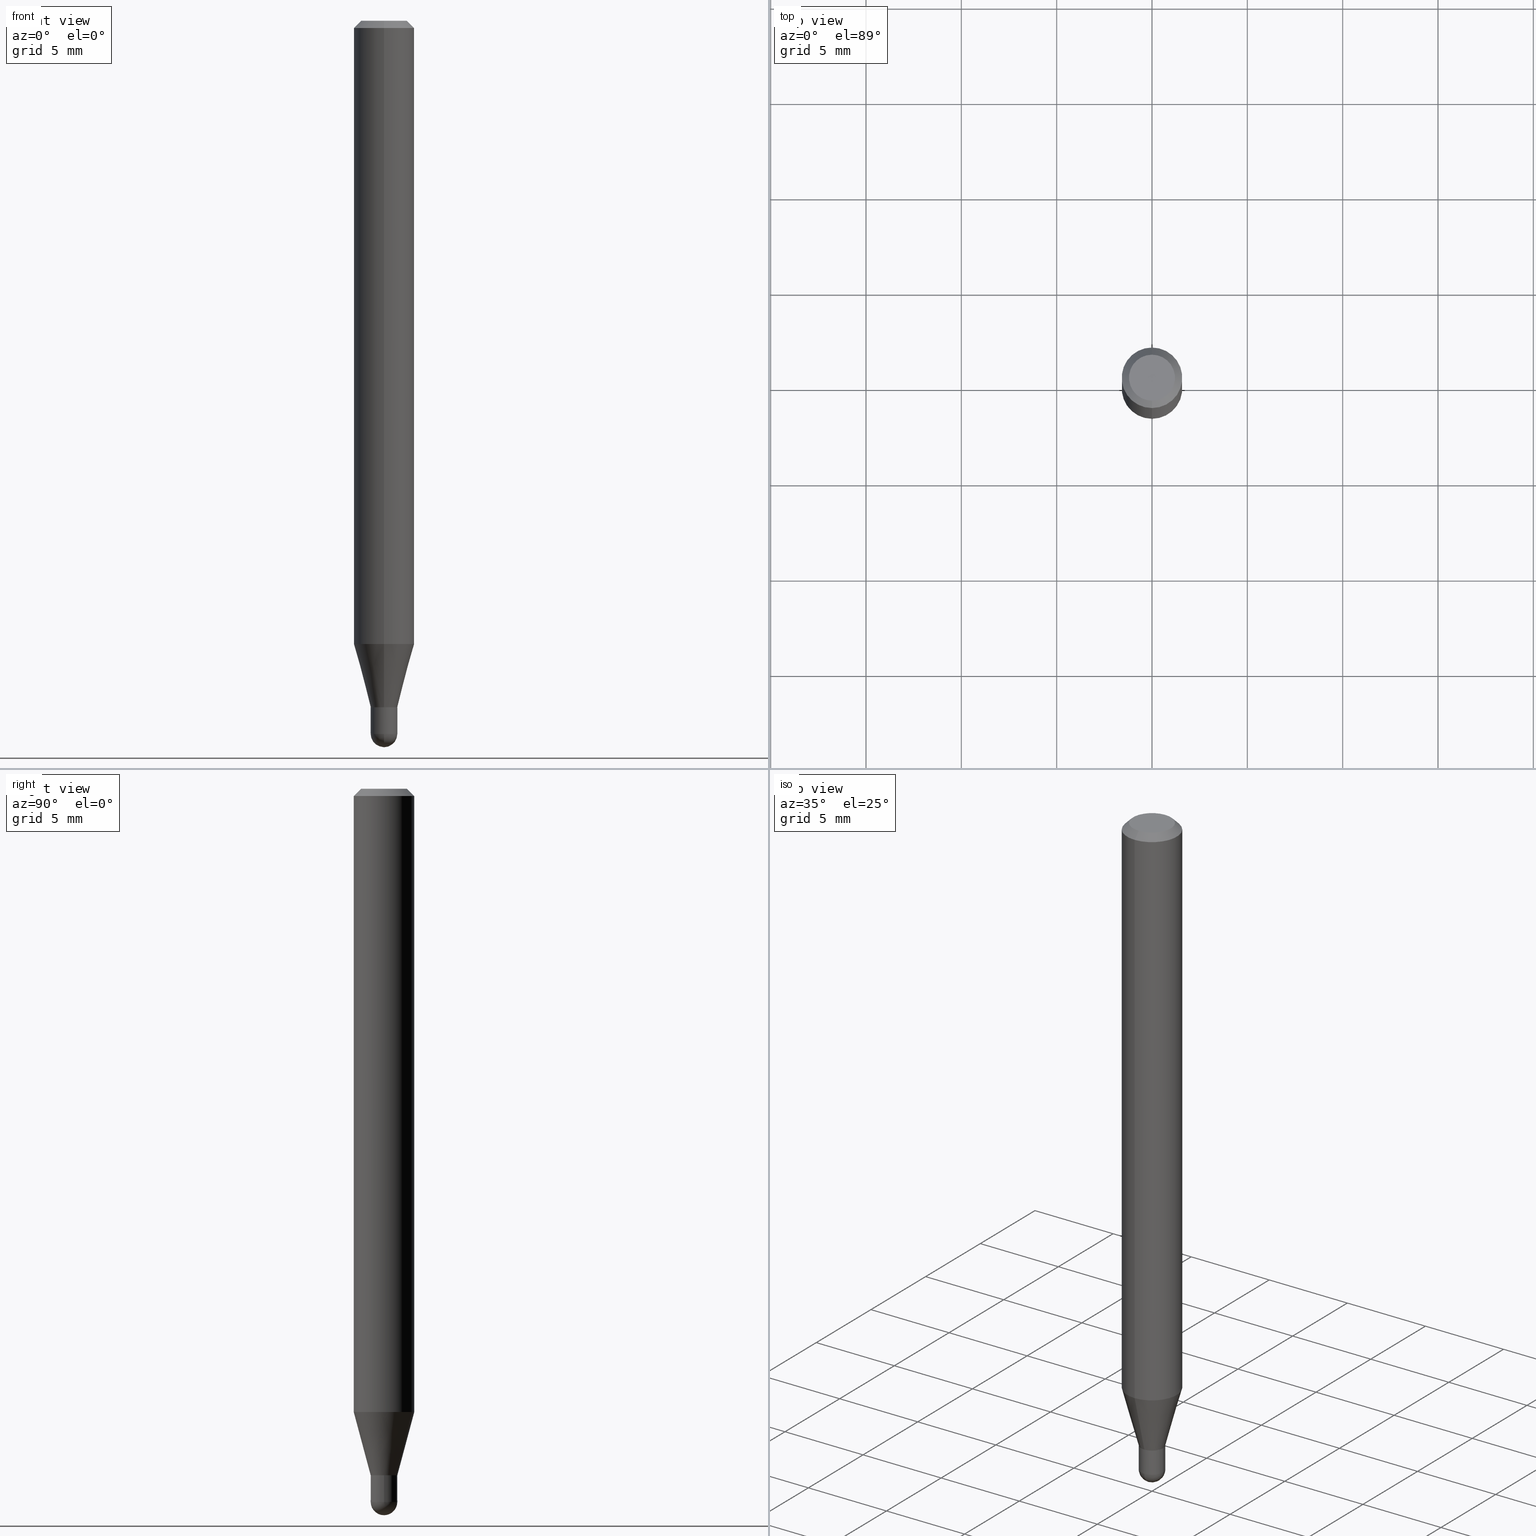
[diagram: canonical four-view strip — front | top / right | iso, engineering-drawing reading convention]
A machine part, canonical four-view strip (front | top / right | iso — engineering-drawing reading convention). The complete STEP part file that produces these views, byte-faithful:
ISO-10303-21;
HEADER;
FILE_DESCRIPTION (( 'STEP AP203' ),
    '1' );
FILE_NAME ('04367.STEP',
    '2024-03-08T18:55:25',
    ( '' ),
    ( '' ),
    'SwSTEP 2.0',
    'SolidWorks 2023',
    '' );
FILE_SCHEMA (( 'CONFIG_CONTROL_DESIGN' ));
ENDSEC;

DATA;
#1 = DIRECTION ( 'NONE',  ( 1.000000000000000000, -7.105427357601001070E-15, 4.926315508542082329E-29 ) ) ;
#2 = CIRCLE ( 'NONE', #37, 0.02750000000000000708 ) ;
#3 = DIRECTION ( 'NONE',  ( -6.982962677686265922E-15, -1.000000000000000000, 0.000000000000000000 ) ) ;
#4 = DIRECTION ( 'NONE',  ( -1.807323732225381810E-15, -0.2588190451025255689, 0.9659258262890669799 ) ) ;
#5 = EDGE_CURVE ( 'NONE', #100, #257, #398, .T. ) ;
#6 = ORIENTED_EDGE ( 'NONE', *, *, #43, .T. ) ;
#7 = FACE_OUTER_BOUND ( 'NONE', #347, .T. ) ;
#8 = VECTOR ( 'NONE', #4, 39.37007874015748854 ) ;
#9 = CLOSED_SHELL ( 'NONE', ( #71, #107, #290, #132, #367, #152, #247, #50, #360, #69, #377, #204 ) ) ;
#10 = PERSON_AND_ORGANIZATION ( #281, #305 ) ;
#11 = UNCERTAINTY_MEASURE_WITH_UNIT (LENGTH_MEASURE( 1.000000000000000082E-05 ), #244, 'distance_accuracy_value', 'NONE');
#12 = ADVANCED_FACE ( 'NONE', ( #80 ), #509, .T. ) ;
#13 = PRODUCT_RELATED_PRODUCT_CATEGORY ( 'detail', '', ( #174 ) ) ;
#14 = PERSON_AND_ORGANIZATION ( #281, #305 ) ;
#15 = APPROVAL_DATE_TIME ( #363, #169 ) ;
#16 = EDGE_LOOP ( 'NONE', ( #456, #288, #265, #249 ) ) ;
#17 = LOCAL_TIME ( 13, 55, 25.00000000000000000, #145 ) ;
#18 = PERSON_AND_ORGANIZATION ( #281, #305 ) ;
#19 = VERTEX_POINT ( 'NONE', #41 ) ;
#20 = EDGE_CURVE ( 'NONE', #223, #19, #202, .T. ) ;
#21 = COORDINATED_UNIVERSAL_TIME_OFFSET ( 5, 0, .BEHIND. ) ;
#22 = VERTEX_POINT ( 'NONE', #148 ) ;
#23 = CARTESIAN_POINT ( 'NONE',  ( 3.598601109812370247E-29, -5.144574050144187163E-15, -1.472500000000000142 ) ) ;
#24 = ORIENTED_EDGE ( 'NONE', *, *, #20, .T. ) ;
#25 = CLOSED_SHELL ( 'NONE', ( #299, #12, #90, #241, #506 ) ) ;
#26 = AXIS2_PLACEMENT_3D ( 'NONE', #49, #365, #323 ) ;
#27 = ORIENTED_EDGE ( 'NONE', *, *, #175, .T. ) ;
#28 = CARTESIAN_POINT ( 'NONE',  ( -4.364351673553916201E-16, -0.06250000000000000000, 2.182180139096782531E-16 ) ) ;
#29 = DIRECTION ( 'NONE',  ( 1.839019923739652775E-15, 0.2588190451025323413, 0.9659258262890650926 ) ) ;
#30 = ORIENTED_EDGE ( 'NONE', *, *, #473, .T. ) ;
#31 = CALENDAR_DATE ( 2024, 8, 3 ) ;
#32 = FACE_OUTER_BOUND ( 'NONE', #432, .T. ) ;
#33 = CARTESIAN_POINT ( 'NONE',  ( 0.02750000000000000708, -5.237222008264718177E-15, -1.472500000000000142 ) ) ;
#34 = CARTESIAN_POINT ( 'NONE',  ( 0.000000000000000000, 0.000000000000000000, 0.000000000000000000 ) ) ;
#35 = PERSON_AND_ORGANIZATION ( #281, #305 ) ;
#36 = DATE_TIME_ROLE ( 'creation_date' ) ;
#37 = AXIS2_PLACEMENT_3D ( 'NONE', #261, #471, #82 ) ;
#38 = FACE_OUTER_BOUND ( 'NONE', #273, .T. ) ;
#39 = CARTESIAN_POINT ( 'NONE',  ( 3.466445219028934149E-29, -4.949184555471504191E-15, -1.417500000000000426 ) ) ;
#40 = DIRECTION ( 'NONE',  ( -2.445463999314943664E-29, 3.491488222554852049E-15, 1.000000000000000000 ) ) ;
#41 = CARTESIAN_POINT ( 'NONE',  ( 1.953992523340629276E-16, 0.02749999999999515679, -1.417000000000000259 ) ) ;
#42 = CARTESIAN_POINT ( 'NONE',  ( -0.02750000000000000014, -4.849791282294318354E-15, -1.417500000000000204 ) ) ;
#43 = EDGE_CURVE ( 'NONE', #65, #98, #310, .T. ) ;
#44 = LINE ( 'NONE', #124, #490 ) ;
#45 = EDGE_LOOP ( 'NONE', ( #196, #214, #125, #6, #352 ) ) ;
#46 = CYLINDRICAL_SURFACE ( 'NONE', #186, 0.02750000000000000708 ) ;
#47 = CONICAL_SURFACE ( 'NONE', #163, 0.02699999999999999969, 0.7853981633974739252 ) ;
#48 = VECTOR ( 'NONE', #462, 39.37007874015748143 ) ;
#49 = CARTESIAN_POINT ( 'NONE',  ( 3.600952817107613706E-29, -5.141206271446532325E-15, -1.472500000000000142 ) ) ;
#50 = ADVANCED_FACE ( 'NONE', ( #38 ), #215, .T. ) ;
#51 = CARTESIAN_POINT ( 'NONE',  ( 0.000000000000000000, 0.000000000000000000, 0.000000000000000000 ) ) ;
#52 = AXIS2_PLACEMENT_3D ( 'NONE', #113, #116, #78 ) ;
#53 = SECURITY_CLASSIFICATION ( '', '', #179 ) ;
#54 = AXIS2_PLACEMENT_3D ( 'NONE', #106, #251, #421 ) ;
#55 = ORIENTED_EDGE ( 'NONE', *, *, #111, .F. ) ;
#56 = ORIENTED_EDGE ( 'NONE', *, *, #20, .F. ) ;
#57 = VECTOR ( 'NONE', #441, 39.37007874015748143 ) ;
#58 = CONICAL_SURFACE ( 'NONE', #403, 0.02750000000000019443, 0.2617993877991579010 ) ;
#59 = ORIENTED_EDGE ( 'NONE', *, *, #339, .F. ) ;
#60 = CARTESIAN_POINT ( 'NONE',  ( -1.885399922974945041E-16, -0.02700000000000494713, -1.417500000000000426 ) ) ;
#61 = ORIENTED_EDGE ( 'NONE', *, *, #498, .F. ) ;
#62 = CARTESIAN_POINT ( 'NONE',  ( 0.02750000000000000014, -5.141206271446532325E-15, -1.417500000000000204 ) ) ;
#63 = EDGE_CURVE ( 'NONE', #22, #19, #386, .T. ) ;
#64 = DIRECTION ( 'NONE',  ( 1.000000000000000000, -6.982962677686265922E-15, 4.883557194083112901E-29 ) ) ;
#65 = VERTEX_POINT ( 'NONE', #33 ) ;
#66 = CIRCLE ( 'NONE', #26, 0.02750000000000000708 ) ;
#67 = PRODUCT_DEFINITION_FORMATION_WITH_SPECIFIED_SOURCE ( 'ANY', '', #174, .NOT_KNOWN. ) ;
#68 = VERTEX_POINT ( 'NONE', #240 ) ;
#69 = ADVANCED_FACE ( 'NONE', ( #92 ), #129, .F. ) ;
#70 = DIRECTION ( 'NONE',  ( -2.445463999314943664E-29, 3.491488222554852049E-15, 1.000000000000000000 ) ) ;
#71 = ADVANCED_FACE ( 'NONE', ( #7 ), #325, .F. ) ;
#72 = ORIENTED_EDGE ( 'NONE', *, *, #85, .T. ) ;
#73 = CARTESIAN_POINT ( 'NONE',  ( 3.668195998972432242E-31, -5.237232333832300359E-17, -0.01500000000000006710 ) ) ;
#74 = FACE_OUTER_BOUND ( 'NONE', #150, .T. ) ;
#75 = DIRECTION ( 'NONE',  ( 5.024295867788190974E-15, 0.7071067811865681119, 0.7071067811865270336 ) ) ;
#76 = EDGE_CURVE ( 'NONE', #448, #161, #314, .T. ) ;
#77 = AXIS2_PLACEMENT_3D ( 'NONE', #308, #210, #481 ) ;
#78 = DIRECTION ( 'NONE',  ( -6.982962677686265922E-15, -1.000000000000000000, 0.000000000000000000 ) ) ;
#79 = CIRCLE ( 'NONE', #324, 0.06250000000000000000 ) ;
#80 = FACE_OUTER_BOUND ( 'NONE', #180, .T. ) ;
#81 = CYLINDRICAL_SURFACE ( 'NONE', #256, 0.02750000000000000708 ) ;
#82 = DIRECTION ( 'NONE',  ( 1.000000000000000000, -6.982962677686277755E-15, 0.000000000000000000 ) ) ;
#83 = DIRECTION ( 'NONE',  ( -2.445463999314943664E-29, 3.491488222554852049E-15, 1.000000000000000000 ) ) ;
#84 = DIRECTION ( 'NONE',  ( -2.445463999314943945E-29, 3.491488222554851654E-15, 1.000000000000000000 ) ) ;
#85 = EDGE_CURVE ( 'NONE', #245, #257, #373, .T. ) ;
#86 = DIRECTION ( 'NONE',  ( -2.445468806185136597E-29, 3.491481338843145583E-15, 1.000000000000000000 ) ) ;
#87 = CC_DESIGN_PERSON_AND_ORGANIZATION_ASSIGNMENT ( #10, #171, ( #440 ) ) ;
#88 = AXIS2_PLACEMENT_3D ( 'NONE', #39, #424, #307 ) ;
#89 = CARTESIAN_POINT ( 'NONE',  ( 3.840629472727447874E-16, 0.04749999999999999362, -2.313455976474456528E-16 ) ) ;
#90 = ADVANCED_FACE ( 'NONE', ( #457 ), #302, .F. ) ;
#91 = DIRECTION ( 'NONE',  ( -6.982962677686265922E-15, -1.000000000000000000, 0.000000000000000000 ) ) ;
#92 = FACE_OUTER_BOUND ( 'NONE', #253, .T. ) ;
#93 = AXIS2_PLACEMENT_3D ( 'NONE', #336, #494, #144 ) ;
#94 = CIRCLE ( 'NONE', #322, 0.02750000000000019443 ) ;
#95 = VECTOR ( 'NONE', #99, 39.37007874015748143 ) ;
#96 = CALENDAR_DATE ( 2024, 8, 3 ) ;
#97 = DIRECTION ( 'NONE',  ( -6.982962677686265922E-15, -1.000000000000000000, 3.491488222554852049E-15 ) ) ;
#98 = VERTEX_POINT ( 'NONE', #62 ) ;
#99 = DIRECTION ( 'NONE',  ( -2.445468806185136877E-29, 3.491481338843145188E-15, 1.000000000000000000 ) ) ;
#100 = VERTEX_POINT ( 'NONE', #380 ) ;
#101 = ORIENTED_EDGE ( 'NONE', *, *, #402, .T. ) ;
#102 = CIRCLE ( 'NONE', #333, 0.06250000000000000000 ) ;
#103 = APPROVAL_ROLE ( '' ) ;
#104 = CIRCLE ( 'NONE', #243, 0.04749999999999999362 ) ;
#105 = ORIENTED_EDGE ( 'NONE', *, *, #168, .T. ) ;
#106 = CARTESIAN_POINT ( 'NONE',  ( 1.920314736364070050E-16, 0.02749999999999505271, -1.417500000000000204 ) ) ;
#107 = ADVANCED_FACE ( 'NONE', ( #185 ), #478, .T. ) ;
#108 = CC_DESIGN_DATE_AND_TIME_ASSIGNMENT ( #366, #291, ( #53 ) ) ;
#109 = ORIENTED_EDGE ( 'NONE', *, *, #5, .F. ) ;
#110 = CYLINDRICAL_SURFACE ( 'NONE', #153, 0.06250000000000000000 ) ;
#111 = EDGE_CURVE ( 'NONE', #430, #486, #298, .T. ) ;
#112 = DIRECTION ( 'NONE',  ( -2.445468806185136877E-29, 3.491481338843145188E-15, 1.000000000000000000 ) ) ;
#113 = CARTESIAN_POINT ( 'NONE',  ( 3.466445219028933028E-29, -4.949184555471503402E-15, -1.417500000000000204 ) ) ;
#114 = ORIENTED_EDGE ( 'NONE', *, *, #319, .T. ) ;
#115 = DIRECTION ( 'NONE',  ( -2.445463999314943664E-29, 3.491488222554852049E-15, 1.000000000000000000 ) ) ;
#116 = DIRECTION ( 'NONE',  ( -2.445463999314943664E-29, 3.491488222554852049E-15, 1.000000000000000000 ) ) ;
#117 = ORIENTED_EDGE ( 'NONE', *, *, #415, .F. ) ;
#118 = DIRECTION ( 'NONE',  ( -2.445468806185136597E-29, 3.491481338843145583E-15, 1.000000000000000000 ) ) ;
#119 = ORIENTED_EDGE ( 'NONE', *, *, #220, .F. ) ;
#120 = ORIENTED_EDGE ( 'NONE', *, *, #458, .T. ) ;
#121 = APPLICATION_CONTEXT ( 'configuration controlled 3d designs of mechanical parts and assemblies' ) ;
#122 = AXIS2_PLACEMENT_3D ( 'NONE', #351, #508, #397 ) ;
#123 = CC_DESIGN_APPROVAL ( #228, ( #53 ) ) ;
#124 = CARTESIAN_POINT ( 'NONE',  ( 4.440892098500625669E-16, 0.06250000000000000000, -2.182180139096782531E-16 ) ) ;
#125 = ORIENTED_EDGE ( 'NONE', *, *, #339, .T. ) ;
#126 = DIRECTION ( 'NONE',  ( -6.982962677686265133E-15, -1.000000000000000000, 0.000000000000000000 ) ) ;
#127 = DESIGN_CONTEXT ( 'detailed design', #121, 'design' ) ;
#128 = CIRCLE ( 'NONE', #343, 0.06250000000000000000 ) ;
#129 = PLANE ( 'NONE',  #485 ) ;
#130 = AXIS2_PLACEMENT_3D ( 'NONE', #162, #86, #438 ) ;
#131 = CARTESIAN_POINT ( 'NONE',  ( -4.364351673553603122E-16, -0.06250000000000451028, -1.286878221735094252 ) ) ;
#132 = ADVANCED_FACE ( 'NONE', ( #463 ), #110, .T. ) ;
#133 = CARTESIAN_POINT ( 'NONE',  ( 0.000000000000000000, 0.000000000000000000, 0.000000000000000000 ) ) ;
#134 = CIRCLE ( 'NONE', #451, 0.02749999999999996197 ) ;
#135 = EDGE_CURVE ( 'NONE', #257, #19, #328, .T. ) ;
#136 = ORIENTED_EDGE ( 'NONE', *, *, #404, .F. ) ;
#137 =( NAMED_UNIT ( * ) PLANE_ANGLE_UNIT ( ) SI_UNIT ( $, .RADIAN. ) );
#138 = VERTEX_POINT ( 'NONE', #238 ) ;
#139 = VERTEX_POINT ( 'NONE', #42 ) ;
#140 = CIRCLE ( 'NONE', #484, 0.02749999999999996197 ) ;
#141 = VECTOR ( 'NONE', #75, 39.37007874015748143 ) ;
#142 = CARTESIAN_POINT ( 'NONE',  ( -1.885399922974945041E-16, -0.02700000000000494713, -1.417500000000000426 ) ) ;
#143 = ORIENTED_EDGE ( 'NONE', *, *, #498, .T. ) ;
#144 = DIRECTION ( 'NONE',  ( -6.982962677686265133E-15, -1.000000000000000000, 0.000000000000000000 ) ) ;
#145 = COORDINATED_UNIVERSAL_TIME_OFFSET ( 5, 0, .BEHIND. ) ;
#146 = PERSON_AND_ORGANIZATION_ROLE ( 'classification_officer' ) ;
#147 = DIRECTION ( 'NONE',  ( -2.445463999314943664E-29, 3.491488222554852049E-15, 1.000000000000000000 ) ) ;
#148 = CARTESIAN_POINT ( 'NONE',  ( 3.197442310920788942E-16, 0.02749999999999524700, -1.417500000000000204 ) ) ;
#149 = CARTESIAN_POINT ( 'NONE',  ( 1.953992523340288833E-16, 0.02750000000000019443, -9.601592612025911519E-17 ) ) ;
#150 = EDGE_LOOP ( 'NONE', ( #56, #211, #72, #296 ) ) ;
#151 = AXIS2_PLACEMENT_3D ( 'NONE', #394, #389, #480 ) ;
#152 = ADVANCED_FACE ( 'NONE', ( #200 ), #58, .T. ) ;
#153 = AXIS2_PLACEMENT_3D ( 'NONE', #254, #227, #422 ) ;
#154 = CARTESIAN_POINT ( 'NONE',  ( 3.668195998972432242E-31, -5.237232333832300359E-17, -0.01500000000000006710 ) ) ;
#155 = CARTESIAN_POINT ( 'NONE',  ( 1.601776647130526163E-45, -2.286921541346059777E-31, -6.549990707609015679E-17 ) ) ;
#156 = CARTESIAN_POINT ( 'NONE',  ( 4.364351673553919652E-16, 0.06249999999999995143, -0.01500000000000028394 ) ) ;
#157 = DIRECTION ( 'NONE',  ( 1.000000000000000000, -6.982962677686279332E-15, 0.000000000000000000 ) ) ;
#158 = DIRECTION ( 'NONE',  ( 6.982962677686265922E-15, 1.000000000000000000, -3.483106191921935554E-15 ) ) ;
#159 = DIMENSIONAL_EXPONENTS ( 1.000000000000000000, 0.000000000000000000, 0.000000000000000000, 0.000000000000000000, 0.000000000000000000, 0.000000000000000000, 0.000000000000000000 ) ;
#160 = CARTESIAN_POINT ( 'NONE',  ( 3.147014362755607605E-29, -4.493120155050413636E-15, -1.286878221735094474 ) ) ;
#161 = VERTEX_POINT ( 'NONE', #317 ) ;
#162 = CARTESIAN_POINT ( 'NONE',  ( 3.600952817107613706E-29, -5.141206271446532325E-15, -1.472500000000000142 ) ) ;
#163 = AXIS2_PLACEMENT_3D ( 'NONE', #232, #392, #126 ) ;
#164 = CONICAL_SURFACE ( 'NONE', #270, 0.06250000000000000000, 0.7853981633974483900 ) ;
#165 = CC_DESIGN_PERSON_AND_ORGANIZATION_ASSIGNMENT ( #18, #454, ( #67 ) ) ;
#166 = DIRECTION ( 'NONE',  ( -2.445463999314943664E-29, 3.491488222554852049E-15, 1.000000000000000000 ) ) ;
#167 = ORIENTED_EDGE ( 'NONE', *, *, #345, .T. ) ;
#168 = EDGE_CURVE ( 'NONE', #65, #448, #344, .T. ) ;
#169 = APPROVAL ( #246, 'UNSPECIFIED' ) ;
#170 = CIRCLE ( 'NONE', #52, 0.02750000000000019443 ) ;
#171 = PERSON_AND_ORGANIZATION_ROLE ( 'creator' ) ;
#172 = CARTESIAN_POINT ( 'NONE',  ( 1.953992523340633713E-16, 0.02749999999999484107, -1.472500000000000142 ) ) ;
#173 = COORDINATED_UNIVERSAL_TIME_OFFSET ( 5, 0, .BEHIND. ) ;
#174 = PRODUCT ( '04367', '04367', '', ( #364 ) ) ;
#175 = EDGE_CURVE ( 'NONE', #486, #285, #79, .T. ) ;
#176 = DATE_AND_TIME ( #96, #213 ) ;
#177 = AXIS2_PLACEMENT_3D ( 'NONE', #133, #326, #417 ) ;
#178 = ORIENTED_EDGE ( 'NONE', *, *, #410, .F. ) ;
#179 = SECURITY_CLASSIFICATION_LEVEL ( 'unclassified' ) ;
#180 = EDGE_LOOP ( 'NONE', ( #237, #349, #488, #59 ) ) ;
#181 = CALENDAR_DATE ( 2024, 8, 3 ) ;
#182 = ORIENTED_EDGE ( 'NONE', *, *, #345, .F. ) ;
#183 = DIRECTION ( 'NONE',  ( -6.982962677686265922E-15, -1.000000000000000000, 0.000000000000000000 ) ) ;
#184 = ORIENTED_EDGE ( 'NONE', *, *, #135, .T. ) ;
#185 = FACE_OUTER_BOUND ( 'NONE', #330, .T. ) ;
#186 = AXIS2_PLACEMENT_3D ( 'NONE', #399, #511, #355 ) ;
#187 = CARTESIAN_POINT ( 'NONE',  ( -0.02750000000000000708, 1.953992523340276014E-16, -1.352707149820099356E-30 ) ) ;
#188 = ORIENTED_EDGE ( 'NONE', *, *, #63, .T. ) ;
#189 = CARTESIAN_POINT ( 'NONE',  ( 3.465222487029276167E-29, -4.947438811360226549E-15, -1.417000000000000259 ) ) ;
#190 = CARTESIAN_POINT ( 'NONE',  ( 3.466445219028933028E-29, -4.949184555471503402E-15, -1.417500000000000204 ) ) ;
#191 = DIRECTION ( 'NONE',  ( -2.445463999314943664E-29, 3.491488222554852049E-15, 1.000000000000000000 ) ) ;
#192 = CONICAL_SURFACE ( 'NONE', #483, 0.02750000000000019443, 0.2617993877991579010 ) ;
#193 = LOCAL_TIME ( 13, 55, 25.00000000000000000, #300 ) ;
#194 = AXIS2_PLACEMENT_3D ( 'NONE', #189, #83, #396 ) ;
#195 = CARTESIAN_POINT ( 'NONE',  ( 3.465222487029276167E-29, -4.947438811360226549E-15, -1.417000000000000259 ) ) ;
#196 = ORIENTED_EDGE ( 'NONE', *, *, #226, .F. ) ;
#197 = CARTESIAN_POINT ( 'NONE',  ( 1.953992523340635685E-16, 0.02749999999999524700, -1.417500000000000204 ) ) ;
#198 = DIRECTION ( 'NONE',  ( -2.445463999314943664E-29, 3.491488222554852049E-15, 1.000000000000000000 ) ) ;
#199 = DIRECTION ( 'NONE',  ( -6.982962677686265922E-15, -1.000000000000000000, 0.000000000000000000 ) ) ;
#200 = FACE_OUTER_BOUND ( 'NONE', #412, .T. ) ;
#201 = DIRECTION ( 'NONE',  ( -6.982962677686265922E-15, -1.000000000000000000, 4.370956789862821150E-15 ) ) ;
#202 = LINE ( 'NONE', #356, #141 ) ;
#203 = LINE ( 'NONE', #278, #57 ) ;
#204 = ADVANCED_FACE ( 'NONE', ( #231 ), #391, .F. ) ;
#205 = PERSON_AND_ORGANIZATION_ROLE ( 'design_owner' ) ;
#206 = LOCAL_TIME ( 13, 55, 25.00000000000000000, #21 ) ;
#207 = LOCAL_TIME ( 13, 55, 25.00000000000000000, #255 ) ;
#208 = VECTOR ( 'NONE', #332, 39.37007874015748143 ) ;
#209 = CC_DESIGN_PERSON_AND_ORGANIZATION_ASSIGNMENT ( #216, #495, ( #67 ) ) ;
#210 = DIRECTION ( 'NONE',  ( -2.445463999314943664E-29, 3.491488222554852049E-15, 1.000000000000000000 ) ) ;
#211 = ORIENTED_EDGE ( 'NONE', *, *, #252, .T. ) ;
#212 = DIRECTION ( 'NONE',  ( -6.982962677686265922E-15, -1.000000000000000000, 3.491488222554852049E-15 ) ) ;
#213 = LOCAL_TIME ( 13, 55, 25.00000000000000000, #173 ) ;
#214 = ORIENTED_EDGE ( 'NONE', *, *, #411, .T. ) ;
#215 = CONICAL_SURFACE ( 'NONE', #371, 0.06250000000000000000, 0.7853981633974483900 ) ;
#216 = PERSON_AND_ORGANIZATION ( #281, #305 ) ;
#217 = PRODUCT_DEFINITION_SHAPE ( 'NONE', 'NONE',  #440 ) ;
#218 = ORIENTED_EDGE ( 'NONE', *, *, #135, .F. ) ;
#219 = APPROVAL_STATUS ( 'not_yet_approved' ) ;
#220 = EDGE_CURVE ( 'NONE', #368, #425, #104, .T. ) ;
#221 = ORIENTED_EDGE ( 'NONE', *, *, #473, .F. ) ;
#222 = VECTOR ( 'NONE', #474, 39.37007874015748143 ) ;
#223 = VERTEX_POINT ( 'NONE', #327 ) ;
#224 = CC_DESIGN_APPROVAL ( #321, ( #67 ) ) ;
#225 = DIRECTION ( 'NONE',  ( 2.445463999314943664E-29, -3.491488222554852049E-15, -1.000000000000000000 ) ) ;
#226 = EDGE_CURVE ( 'NONE', #161, #139, #449, .T. ) ;
#227 = DIRECTION ( 'NONE',  ( -2.445463999314943664E-29, 3.491488222554852049E-15, 1.000000000000000000 ) ) ;
#228 = APPROVAL ( #219, 'UNSPECIFIED' ) ;
#229 = PLANE ( 'NONE',  #151 ) ;
#230 = ORIENTED_EDGE ( 'NONE', *, *, #283, .T. ) ;
#231 = FACE_OUTER_BOUND ( 'NONE', #318, .T. ) ;
#232 = CARTESIAN_POINT ( 'NONE',  ( 3.466445219028934149E-29, -4.949184555471504191E-15, -1.417500000000000426 ) ) ;
#233 = CARTESIAN_POINT ( 'NONE',  ( 3.668195998972432242E-31, -5.237232333832300359E-17, -0.01500000000000006710 ) ) ;
#234 = AXIS2_PLACEMENT_3D ( 'NONE', #23, #64, #183 ) ;
#235 = DIRECTION ( 'NONE',  ( -6.982962677686265922E-15, -1.000000000000000000, 4.370956789862821150E-15 ) ) ;
#236 = CARTESIAN_POINT ( 'NONE',  ( -1.920314736363389904E-16, -0.02750000000000514186, -1.417500000000000204 ) ) ;
#237 = ORIENTED_EDGE ( 'NONE', *, *, #470, .F. ) ;
#238 = CARTESIAN_POINT ( 'NONE',  ( 4.440892098500938748E-16, 0.06249999999999548972, -1.286878221735094918 ) ) ;
#239 = CARTESIAN_POINT ( 'NONE',  ( 3.598601109812370247E-29, -5.144574050144187163E-15, -1.472500000000000142 ) ) ;
#240 = CARTESIAN_POINT ( 'NONE',  ( -1.920314736363362294E-16, -0.02750000000000512798, -1.472500000000000142 ) ) ;
#241 = ADVANCED_FACE ( 'NONE', ( #455 ), #378, .T. ) ;
#242 = AXIS2_PLACEMENT_3D ( 'NONE', #195, #198, #346 ) ;
#243 = AXIS2_PLACEMENT_3D ( 'NONE', #155, #469, #284 ) ;
#244 =( CONVERSION_BASED_UNIT ( 'INCH', #287 ) LENGTH_UNIT ( ) NAMED_UNIT ( #159 ) );
#245 = VERTEX_POINT ( 'NONE', #142 ) ;
#246 = APPROVAL_STATUS ( 'not_yet_approved' ) ;
#247 = ADVANCED_FACE ( 'NONE', ( #459 ), #383, .T. ) ;
#248 = ORIENTED_EDGE ( 'NONE', *, *, #439, .F. ) ;
#249 = ORIENTED_EDGE ( 'NONE', *, *, #76, .F. ) ;
#250 = ORIENTED_EDGE ( 'NONE', *, *, #226, .T. ) ;
#251 = DIRECTION ( 'NONE',  ( 2.438088387897960049E-29, -3.491481338843145188E-15, -1.000000000000000000 ) ) ;
#252 = EDGE_CURVE ( 'NONE', #223, #245, #277, .T. ) ;
#253 = EDGE_LOOP ( 'NONE', ( #178, #502 ) ) ;
#254 = CARTESIAN_POINT ( 'NONE',  ( 0.000000000000000000, 0.000000000000000000, 0.000000000000000000 ) ) ;
#255 = COORDINATED_UNIVERSAL_TIME_OFFSET ( 5, 0, .BEHIND. ) ;
#256 = AXIS2_PLACEMENT_3D ( 'NONE', #500, #118, #464 ) ;
#257 = VERTEX_POINT ( 'NONE', #358 ) ;
#258 = APPROVAL_PERSON_ORGANIZATION ( #452, #321, #499 ) ;
#259 = CC_DESIGN_DATE_AND_TIME_ASSIGNMENT ( #176, #36, ( #440 ) ) ;
#260 = DIRECTION ( 'NONE',  ( -2.445463999314943664E-29, 3.491488222554852049E-15, 1.000000000000000000 ) ) ;
#261 = CARTESIAN_POINT ( 'NONE',  ( 3.600952817107613706E-29, -5.141206271446532325E-15, -1.472500000000000142 ) ) ;
#262 = VERTEX_POINT ( 'NONE', #342 ) ;
#263 = DIRECTION ( 'NONE',  ( -6.982962677686265922E-15, -1.000000000000000000, 3.483106191921935554E-15 ) ) ;
#264 = FACE_OUTER_BOUND ( 'NONE', #445, .T. ) ;
#265 = ORIENTED_EDGE ( 'NONE', *, *, #411, .F. ) ;
#266 =( LENGTH_UNIT ( ) NAMED_UNIT ( * ) SI_UNIT ( $, .METRE. ) );
#267 = DIRECTION ( 'NONE',  ( 7.105427357601001070E-15, 1.000000000000000000, 0.000000000000000000 ) ) ;
#268 = ORIENTED_EDGE ( 'NONE', *, *, #410, .T. ) ;
#269 = ORIENTED_EDGE ( 'NONE', *, *, #220, .T. ) ;
#270 = AXIS2_PLACEMENT_3D ( 'NONE', #431, #468, #272 ) ;
#271 = DIRECTION ( 'NONE',  ( -6.982962677686266711E-15, -1.000000000000000000, 3.491488222554852443E-15 ) ) ;
#272 = DIRECTION ( 'NONE',  ( 6.982962677686265922E-15, 1.000000000000000000, -3.483106191921935554E-15 ) ) ;
#273 = EDGE_LOOP ( 'NONE', ( #117, #61, #120, #393 ) ) ;
#274 = FACE_OUTER_BOUND ( 'NONE', #489, .T. ) ;
#275 = CARTESIAN_POINT ( 'NONE',  ( 3.466445219028933028E-29, -4.949184555471503402E-15, -1.417500000000000204 ) ) ;
#276 = ORIENTED_EDGE ( 'NONE', *, *, #405, .T. ) ;
#277 = CIRCLE ( 'NONE', #88, 0.02699999999999999969 ) ;
#278 = CARTESIAN_POINT ( 'NONE',  ( -4.287811248607203282E-16, -0.06250000000000005551, -0.01499999999999984852 ) ) ;
#279 = ADVANCED_BREP_SHAPE_REPRESENTATION ( '04367', ( #306, #482, #177 ), #400 ) ;
#280 = AXIS2_PLACEMENT_3D ( 'NONE', #51, #260, #212 ) ;
#281 = PERSON ( 'UNSPECIFIED', 'UNSPECIFIED', 'UNSPECIFIED', ('UNSPECIFIED'), ('UNSPECIFIED'), ('UNSPECIFIED') ) ;
#282 = CIRCLE ( 'NONE', #443, 0.02750000000000000014 ) ;
#283 = EDGE_CURVE ( 'NONE', #100, #430, #475, .T. ) ;
#284 = DIRECTION ( 'NONE',  ( -6.982962677686266711E-15, -1.000000000000000000, 3.491488222554852443E-15 ) ) ;
#285 = VERTEX_POINT ( 'NONE', #437 ) ;
#286 = EDGE_CURVE ( 'NONE', #138, #285, #44, .T. ) ;
#287 = LENGTH_MEASURE_WITH_UNIT ( LENGTH_MEASURE( 0.02539999999999999897 ), #266 );
#288 = ORIENTED_EDGE ( 'NONE', *, *, #470, .T. ) ;
#289 = CC_DESIGN_PERSON_AND_ORGANIZATION_ASSIGNMENT ( #14, #205, ( #174 ) ) ;
#290 = ADVANCED_FACE ( 'NONE', ( #274 ), #164, .T. ) ;
#291 = DATE_TIME_ROLE ( 'classification_date' ) ;
#292 = EDGE_LOOP ( 'NONE', ( #384, #420, #340, #55 ) ) ;
#293 = DIRECTION ( 'NONE',  ( -2.445468806185136597E-29, 3.491481338843145583E-15, 1.000000000000000000 ) ) ;
#294 = CIRCLE ( 'NONE', #77, 0.02699999999999999969 ) ;
#295 = APPROVAL_PERSON_ORGANIZATION ( #35, #228, #103 ) ;
#296 = ORIENTED_EDGE ( 'NONE', *, *, #388, .F. ) ;
#297 = ORIENTED_EDGE ( 'NONE', *, *, #286, .F. ) ;
#298 = LINE ( 'NONE', #28, #48 ) ;
#299 = ADVANCED_FACE ( 'NONE', ( #303 ), #46, .T. ) ;
#300 = COORDINATED_UNIVERSAL_TIME_OFFSET ( 5, 0, .BEHIND. ) ;
#301 = CARTESIAN_POINT ( 'NONE',  ( 0.02750000000000000708, -1.920314736363723691E-16, 1.340948613343882588E-30 ) ) ;
#302 = PLANE ( 'NONE',  #54 ) ;
#303 = FACE_OUTER_BOUND ( 'NONE', #376, .T. ) ;
#304 = EDGE_CURVE ( 'NONE', #262, #448, #134, .T. ) ;
#305 = ORGANIZATION ( 'UNSPECIFIED', 'UNSPECIFIED', '' ) ;
#306 = MANIFOLD_SOLID_BREP ( 'Body-Move/Copy2[1]', #25 ) ;
#307 = DIRECTION ( 'NONE',  ( -6.982962677686265133E-15, -1.000000000000000000, 0.000000000000000000 ) ) ;
#308 = CARTESIAN_POINT ( 'NONE',  ( 3.466445219028934149E-29, -4.949184555471504191E-15, -1.417500000000000426 ) ) ;
#309 = CARTESIAN_POINT ( 'NONE',  ( 3.466452032767431328E-29, -4.949174797810159833E-15, -1.417500000000000204 ) ) ;
#310 = LINE ( 'NONE', #301, #311 ) ;
#311 = VECTOR ( 'NONE', #112, 39.37007874015748143 ) ;
#312 = CIRCLE ( 'NONE', #242, 0.02750000000000019790 ) ;
#313 = DIRECTION ( 'NONE',  ( -1.000000000000000000, 6.982962677686265922E-15, -4.883557194083112340E-29 ) ) ;
#314 = CIRCLE ( 'NONE', #491, 0.02750000000000000708 ) ;
#315 = DIRECTION ( 'NONE',  ( -2.445468806185136597E-29, 3.491481338843145583E-15, 1.000000000000000000 ) ) ;
#316 = EDGE_CURVE ( 'NONE', #285, #486, #407, .T. ) ;
#317 = CARTESIAN_POINT ( 'NONE',  ( -0.02750000000000000708, -4.849791282294318354E-15, -1.472500000000000142 ) ) ;
#318 = EDGE_LOOP ( 'NONE', ( #379, #493, #512, #184 ) ) ;
#319 = EDGE_CURVE ( 'NONE', #100, #22, #170, .T. ) ;
#320 = DIRECTION ( 'NONE',  ( -2.445463999314943664E-29, 3.491488222554851654E-15, 1.000000000000000000 ) ) ;
#321 = APPROVAL ( #385, 'UNSPECIFIED' ) ;
#322 = AXIS2_PLACEMENT_3D ( 'NONE', #406, #442, #91 ) ;
#323 = DIRECTION ( 'NONE',  ( 1.000000000000000000, -6.982962677686277755E-15, 0.000000000000000000 ) ) ;
#324 = AXIS2_PLACEMENT_3D ( 'NONE', #73, #387, #263 ) ;
#325 = CYLINDRICAL_SURFACE ( 'NONE', #280, 0.02750000000000019443 ) ;
#326 = DIRECTION ( 'NONE',  ( 0.000000000000000000, 0.000000000000000000, 1.000000000000000000 ) ) ;
#327 = CARTESIAN_POINT ( 'NONE',  ( 1.936228954946626262E-16, 0.02699999999999505226, -1.417500000000000426 ) ) ;
#328 = CIRCLE ( 'NONE', #194, 0.02750000000000019790 ) ;
#329 = CALENDAR_DATE ( 2024, 8, 3 ) ;
#330 = EDGE_LOOP ( 'NONE', ( #268, #24, #218, #395 ) ) ;
#331 = ORIENTED_EDGE ( 'NONE', *, *, #111, .T. ) ;
#332 = DIRECTION ( 'NONE',  ( -4.937700262164674260E-15, -0.7071067811865632269, 0.7071067811865319186 ) ) ;
#333 = AXIS2_PLACEMENT_3D ( 'NONE', #427, #70, #235 ) ;
#334 = CC_DESIGN_SECURITY_CLASSIFICATION ( #53, ( #67 ) ) ;
#335 = ORIENTED_EDGE ( 'NONE', *, *, #439, .T. ) ;
#336 = CARTESIAN_POINT ( 'NONE',  ( 3.466445219028934149E-29, -4.949184555471504191E-15, -1.417500000000000426 ) ) ;
#337 = LINE ( 'NONE', #156, #222 ) ;
#338 = ORIENTED_EDGE ( 'NONE', *, *, #415, .T. ) ;
#339 = EDGE_CURVE ( 'NONE', #68, #65, #2, .T. ) ;
#340 = ORIENTED_EDGE ( 'NONE', *, *, #175, .F. ) ;
#341 = LINE ( 'NONE', #197, #357 ) ;
#342 = CARTESIAN_POINT ( 'NONE',  ( 3.664675648334840268E-29, -5.242273676311202011E-15, -1.500000000000000222 ) ) ;
#343 = AXIS2_PLACEMENT_3D ( 'NONE', #160, #166, #201 ) ;
#344 = CIRCLE ( 'NONE', #130, 0.02750000000000000708 ) ;
#345 = EDGE_CURVE ( 'NONE', #138, #430, #102, .T. ) ;
#346 = DIRECTION ( 'NONE',  ( -6.982962677686265922E-15, -1.000000000000000000, 0.000000000000000000 ) ) ;
#347 = EDGE_LOOP ( 'NONE', ( #248, #188, #372, #109 ) ) ;
#348 = CALENDAR_DATE ( 2024, 8, 3 ) ;
#349 = ORIENTED_EDGE ( 'NONE', *, *, #304, .T. ) ;
#350 = FACE_OUTER_BOUND ( 'NONE', #45, .T. ) ;
#351 = CARTESIAN_POINT ( 'NONE',  ( 3.466452032767431328E-29, -4.949174797810159833E-15, -1.417500000000000204 ) ) ;
#352 = ORIENTED_EDGE ( 'NONE', *, *, #405, .F. ) ;
#353 = DIRECTION ( 'NONE',  ( -2.445463999314943664E-29, 3.491488222554852049E-15, 1.000000000000000000 ) ) ;
#354 = CARTESIAN_POINT ( 'NONE',  ( 3.600952817107613706E-29, -5.141206271446532325E-15, -1.472500000000000142 ) ) ;
#355 = DIRECTION ( 'NONE',  ( 1.000000000000000000, -6.982962677686265922E-15, 4.876176775795935232E-29 ) ) ;
#356 = CARTESIAN_POINT ( 'NONE',  ( 1.918465386552616839E-16, 0.02699999999999505226, -1.417500000000000426 ) ) ;
#357 = VECTOR ( 'NONE', #29, 39.37007874015748143 ) ;
#358 = CARTESIAN_POINT ( 'NONE',  ( -1.920314736363397053E-16, -0.02750000000000523900, -1.417000000000000259 ) ) ;
#359 = CARTESIAN_POINT ( 'NONE',  ( 3.466445219028934149E-29, -4.949184555471504191E-15, -1.417500000000000426 ) ) ;
#360 = ADVANCED_FACE ( 'NONE', ( #264 ), #229, .F. ) ;
#361 = DIRECTION ( 'NONE',  ( -6.982962677686265922E-15, -1.000000000000000000, 3.491488222554851654E-15 ) ) ;
#362 = APPROVAL_PERSON_ORGANIZATION ( #374, #169, #413 ) ;
#363 = DATE_AND_TIME ( #181, #206 ) ;
#364 = MECHANICAL_CONTEXT ( 'NONE', #401, 'mechanical' ) ;
#365 = DIRECTION ( 'NONE',  ( -2.445468806185136597E-29, 3.491481338843145583E-15, 1.000000000000000000 ) ) ;
#366 = DATE_AND_TIME ( #329, #207 ) ;
#367 = ADVANCED_FACE ( 'NONE', ( #32 ), #192, .T. ) ;
#368 = VERTEX_POINT ( 'NONE', #429 ) ;
#369 = CC_DESIGN_APPROVAL ( #169, ( #440 ) ) ;
#370 = CC_DESIGN_PERSON_AND_ORGANIZATION_ASSIGNMENT ( #487, #146, ( #53 ) ) ;
#371 = AXIS2_PLACEMENT_3D ( 'NONE', #233, #225, #158 ) ;
#372 = ORIENTED_EDGE ( 'NONE', *, *, #388, .T. ) ;
#373 = LINE ( 'NONE', #60, #208 ) ;
#374 = PERSON_AND_ORGANIZATION ( #281, #305 ) ;
#375 = SHAPE_DEFINITION_REPRESENTATION ( #217, #279 ) ;
#376 = EDGE_LOOP ( 'NONE', ( #418, #250, #428, #414, #105 ) ) ;
#377 = ADVANCED_FACE ( 'NONE', ( #74 ), #47, .T. ) ;
#378 = SPHERICAL_SURFACE ( 'NONE', #234, 0.02749999999999996197 ) ;
#379 = ORIENTED_EDGE ( 'NONE', *, *, #63, .F. ) ;
#380 = CARTESIAN_POINT ( 'NONE',  ( -1.920314736363389904E-16, -0.02750000000000514186, -1.417500000000000204 ) ) ;
#381 = CIRCLE ( 'NONE', #122, 0.02750000000000000014 ) ;
#382 = DATE_AND_TIME ( #31, #17 ) ;
#383 = CYLINDRICAL_SURFACE ( 'NONE', #503, 0.06250000000000000000 ) ;
#384 = ORIENTED_EDGE ( 'NONE', *, *, #404, .T. ) ;
#385 = APPROVAL_STATUS ( 'not_yet_approved' ) ;
#386 = LINE ( 'NONE', #149, #505 ) ;
#387 = DIRECTION ( 'NONE',  ( -2.445463999314943664E-29, 3.491488222554852049E-15, 1.000000000000000000 ) ) ;
#388 = EDGE_CURVE ( 'NONE', #19, #257, #312, .T. ) ;
#389 = DIRECTION ( 'NONE',  ( 2.445463999314943664E-29, -3.491488222554851654E-15, -1.000000000000000000 ) ) ;
#390 = DIRECTION ( 'NONE',  ( 1.000000000000000000, -6.982962677686265922E-15, 4.883557194083112901E-29 ) ) ;
#391 = CYLINDRICAL_SURFACE ( 'NONE', #408, 0.02750000000000019443 ) ;
#392 = DIRECTION ( 'NONE',  ( -2.445463999314943664E-29, 3.491488222554852049E-15, 1.000000000000000000 ) ) ;
#393 = ORIENTED_EDGE ( 'NONE', *, *, #316, .T. ) ;
#394 = CARTESIAN_POINT ( 'NONE',  ( 3.316907271900976096E-16, 0.04749999999999999362, -1.985956441094005251E-16 ) ) ;
#395 = ORIENTED_EDGE ( 'NONE', *, *, #85, .F. ) ;
#396 = DIRECTION ( 'NONE',  ( -6.982962677686265922E-15, -1.000000000000000000, 0.000000000000000000 ) ) ;
#397 = DIRECTION ( 'NONE',  ( 1.000000000000000000, -6.982962677686279332E-15, 0.000000000000000000 ) ) ;
#398 = LINE ( 'NONE', #435, #453 ) ;
#399 = CARTESIAN_POINT ( 'NONE',  ( 0.000000000000000000, 0.000000000000000000, 0.000000000000000000 ) ) ;
#400 =( GEOMETRIC_REPRESENTATION_CONTEXT ( 3 ) GLOBAL_UNCERTAINTY_ASSIGNED_CONTEXT ( ( #11 ) ) GLOBAL_UNIT_ASSIGNED_CONTEXT ( ( #244, #137, #444 ) ) REPRESENTATION_CONTEXT ( 'NONE', 'WORKASPACE' ) );
#401 = APPLICATION_CONTEXT ( 'configuration controlled 3d designs of mechanical parts and assemblies' ) ;
#402 = EDGE_CURVE ( 'NONE', #98, #139, #381, .T. ) ;
#403 = AXIS2_PLACEMENT_3D ( 'NONE', #275, #353, #3 ) ;
#404 = EDGE_CURVE ( 'NONE', #430, #138, #128, .T. ) ;
#405 = EDGE_CURVE ( 'NONE', #139, #98, #282, .T. ) ;
#406 = CARTESIAN_POINT ( 'NONE',  ( 3.466445219028933028E-29, -4.949184555471503402E-15, -1.417500000000000204 ) ) ;
#407 = CIRCLE ( 'NONE', #476, 0.06250000000000000000 ) ;
#408 = AXIS2_PLACEMENT_3D ( 'NONE', #34, #191, #507 ) ;
#409 = APPLICATION_PROTOCOL_DEFINITION ( 'international standard', 'config_control_design', 1994, #401 ) ;
#410 = EDGE_CURVE ( 'NONE', #245, #223, #294, .T. ) ;
#411 = EDGE_CURVE ( 'NONE', #161, #68, #66, .T. ) ;
#412 = EDGE_LOOP ( 'NONE', ( #221, #335, #230, #182 ) ) ;
#413 = APPROVAL_ROLE ( '' ) ;
#414 = ORIENTED_EDGE ( 'NONE', *, *, #43, .F. ) ;
#415 = EDGE_CURVE ( 'NONE', #368, #486, #203, .T. ) ;
#416 = CIRCLE ( 'NONE', #423, 0.04749999999999999362 ) ;
#417 = DIRECTION ( 'NONE',  ( 1.000000000000000000, 0.000000000000000000, 0.000000000000000000 ) ) ;
#418 = ORIENTED_EDGE ( 'NONE', *, *, #76, .T. ) ;
#419 = DIRECTION ( 'NONE',  ( 1.000000000000000000, -6.982962677686277755E-15, 0.000000000000000000 ) ) ;
#420 = ORIENTED_EDGE ( 'NONE', *, *, #286, .T. ) ;
#421 = DIRECTION ( 'NONE',  ( -1.000000000000000000, 6.982962677686265922E-15, -4.876176775795935793E-29 ) ) ;
#422 = DIRECTION ( 'NONE',  ( -6.982962677686265922E-15, -1.000000000000000000, 3.491488222554852049E-15 ) ) ;
#423 = AXIS2_PLACEMENT_3D ( 'NONE', #467, #115, #271 ) ;
#424 = DIRECTION ( 'NONE',  ( -2.445463999314943664E-29, 3.491488222554852049E-15, 1.000000000000000000 ) ) ;
#425 = VERTEX_POINT ( 'NONE', #89 ) ;
#426 = AXIS2_PLACEMENT_3D ( 'NONE', #501, #390, #199 ) ;
#427 = CARTESIAN_POINT ( 'NONE',  ( 3.147014362755607605E-29, -4.493120155050413636E-15, -1.286878221735094474 ) ) ;
#428 = ORIENTED_EDGE ( 'NONE', *, *, #402, .F. ) ;
#429 = CARTESIAN_POINT ( 'NONE',  ( -3.773273898774340269E-16, -0.04749999999999999362, 1.003457834952653145E-16 ) ) ;
#430 = VERTEX_POINT ( 'NONE', #131 ) ;
#431 = CARTESIAN_POINT ( 'NONE',  ( 3.668195998972432242E-31, -5.237232333832300359E-17, -0.01500000000000006710 ) ) ;
#432 = EDGE_LOOP ( 'NONE', ( #114, #30, #136, #497 ) ) ;
#433 = CARTESIAN_POINT ( 'NONE',  ( 3.598601109812370247E-29, -5.144574050144187163E-15, -1.472500000000000142 ) ) ;
#434 = DIRECTION ( 'NONE',  ( -6.982962677686265922E-15, -1.000000000000000000, 3.483106191921935554E-15 ) ) ;
#435 = CARTESIAN_POINT ( 'NONE',  ( -1.920314736363736756E-16, -0.02750000000000019443, 9.601592612025911519E-17 ) ) ;
#436 = CARTESIAN_POINT ( 'NONE',  ( -4.364351673553912750E-16, -0.06250000000000005551, -0.01499999999999984852 ) ) ;
#437 = CARTESIAN_POINT ( 'NONE',  ( 4.440892098500942692E-16, 0.06249999999999995143, -0.01500000000000028394 ) ) ;
#438 = DIRECTION ( 'NONE',  ( 1.000000000000000000, -6.982962677686277755E-15, 0.000000000000000000 ) ) ;
#439 = EDGE_CURVE ( 'NONE', #22, #100, #94, .T. ) ;
#440 = PRODUCT_DEFINITION ( 'UNKNOWN', '', #67, #127 ) ;
#441 = DIRECTION ( 'NONE',  ( -4.851104656540964275E-15, -0.7071067811865500152, -0.7071067811865450192 ) ) ;
#442 = DIRECTION ( 'NONE',  ( -2.445463999314943664E-29, 3.491488222554852049E-15, 1.000000000000000000 ) ) ;
#443 = AXIS2_PLACEMENT_3D ( 'NONE', #309, #315, #157 ) ;
#444 =( NAMED_UNIT ( * ) SI_UNIT ( $, .STERADIAN. ) SOLID_ANGLE_UNIT ( ) );
#445 = EDGE_LOOP ( 'NONE', ( #143, #269 ) ) ;
#446 = APPLICATION_PROTOCOL_DEFINITION ( 'international standard', 'config_control_design', 1994, #121 ) ;
#447 = DATE_AND_TIME ( #348, #193 ) ;
#448 = VERTEX_POINT ( 'NONE', #172 ) ;
#449 = LINE ( 'NONE', #187, #95 ) ;
#450 = ORIENTED_EDGE ( 'NONE', *, *, #316, .F. ) ;
#451 = AXIS2_PLACEMENT_3D ( 'NONE', #239, #1, #267 ) ;
#452 = PERSON_AND_ORGANIZATION ( #281, #305 ) ;
#453 = VECTOR ( 'NONE', #477, 39.37007874015748143 ) ;
#454 = PERSON_AND_ORGANIZATION_ROLE ( 'creator' ) ;
#455 = FACE_OUTER_BOUND ( 'NONE', #16, .T. ) ;
#456 = ORIENTED_EDGE ( 'NONE', *, *, #304, .F. ) ;
#457 = FACE_OUTER_BOUND ( 'NONE', #472, .T. ) ;
#458 = EDGE_CURVE ( 'NONE', #425, #285, #337, .T. ) ;
#459 = FACE_OUTER_BOUND ( 'NONE', #461, .T. ) ;
#460 = APPROVAL_DATE_TIME ( #447, #228 ) ;
#461 = EDGE_LOOP ( 'NONE', ( #297, #167, #331, #450 ) ) ;
#462 = DIRECTION ( 'NONE',  ( -2.445463999314943945E-29, 3.491488222554851654E-15, 1.000000000000000000 ) ) ;
#463 = FACE_OUTER_BOUND ( 'NONE', #292, .T. ) ;
#464 = DIRECTION ( 'NONE',  ( 1.000000000000000000, -6.982962677686265922E-15, 4.876176775795935232E-29 ) ) ;
#465 = DIRECTION ( 'NONE',  ( -2.445463999314943664E-29, 3.491488222554852049E-15, 1.000000000000000000 ) ) ;
#466 = DIRECTION ( 'NONE',  ( -2.445463999314943945E-29, 3.491488222554851654E-15, 1.000000000000000000 ) ) ;
#467 = CARTESIAN_POINT ( 'NONE',  ( 1.601776647130526163E-45, -2.286921541346059777E-31, -6.549990707609015679E-17 ) ) ;
#468 = DIRECTION ( 'NONE',  ( 2.445463999314943664E-29, -3.491488222554852049E-15, -1.000000000000000000 ) ) ;
#469 = DIRECTION ( 'NONE',  ( -2.445463999314943664E-29, 3.491488222554852049E-15, 1.000000000000000000 ) ) ;
#470 = EDGE_CURVE ( 'NONE', #262, #68, #140, .T. ) ;
#471 = DIRECTION ( 'NONE',  ( -2.445468806185136597E-29, 3.491481338843145583E-15, 1.000000000000000000 ) ) ;
#472 = EDGE_LOOP ( 'NONE', ( #101, #276 ) ) ;
#473 = EDGE_CURVE ( 'NONE', #22, #138, #341, .T. ) ;
#474 = DIRECTION ( 'NONE',  ( 4.937700262164548042E-15, 0.7071067811865451302, -0.7071067811865499042 ) ) ;
#475 = LINE ( 'NONE', #236, #8 ) ;
#476 = AXIS2_PLACEMENT_3D ( 'NONE', #154, #465, #434 ) ;
#477 = DIRECTION ( 'NONE',  ( -2.445463999314943945E-29, 3.491488222554851654E-15, 1.000000000000000000 ) ) ;
#478 = CONICAL_SURFACE ( 'NONE', #93, 0.02699999999999999969, 0.7853981633974739252 ) ;
#479 = DIRECTION ( 'NONE',  ( -6.982962677686265922E-15, -1.000000000000000000, 0.000000000000000000 ) ) ;
#480 = DIRECTION ( 'NONE',  ( 6.982962677686265922E-15, 1.000000000000000000, -3.491488222554851654E-15 ) ) ;
#481 = DIRECTION ( 'NONE',  ( -6.982962677686265133E-15, -1.000000000000000000, 0.000000000000000000 ) ) ;
#482 = MANIFOLD_SOLID_BREP ( 'Body-Move/Copy2[2]', #9 ) ;
#483 = AXIS2_PLACEMENT_3D ( 'NONE', #190, #40, #504 ) ;
#484 = AXIS2_PLACEMENT_3D ( 'NONE', #433, #313, #479 ) ;
#485 = AXIS2_PLACEMENT_3D ( 'NONE', #359, #320, #361 ) ;
#486 = VERTEX_POINT ( 'NONE', #436 ) ;
#487 = PERSON_AND_ORGANIZATION ( #281, #305 ) ;
#488 = ORIENTED_EDGE ( 'NONE', *, *, #168, .F. ) ;
#489 = EDGE_LOOP ( 'NONE', ( #119, #338, #27, #510 ) ) ;
#490 = VECTOR ( 'NONE', #84, 39.37007874015748143 ) ;
#491 = AXIS2_PLACEMENT_3D ( 'NONE', #354, #293, #419 ) ;
#492 = APPROVAL_DATE_TIME ( #382, #321 ) ;
#493 = ORIENTED_EDGE ( 'NONE', *, *, #319, .F. ) ;
#494 = DIRECTION ( 'NONE',  ( -2.445463999314943664E-29, 3.491488222554852049E-15, 1.000000000000000000 ) ) ;
#495 = PERSON_AND_ORGANIZATION_ROLE ( 'design_supplier' ) ;
#496 = CARTESIAN_POINT ( 'NONE',  ( 0.000000000000000000, 0.000000000000000000, 0.000000000000000000 ) ) ;
#497 = ORIENTED_EDGE ( 'NONE', *, *, #283, .F. ) ;
#498 = EDGE_CURVE ( 'NONE', #425, #368, #416, .T. ) ;
#499 = APPROVAL_ROLE ( '' ) ;
#500 = CARTESIAN_POINT ( 'NONE',  ( 0.000000000000000000, 0.000000000000000000, 0.000000000000000000 ) ) ;
#501 = CARTESIAN_POINT ( 'NONE',  ( 3.598601109812370247E-29, -5.144574050144187163E-15, -1.472500000000000142 ) ) ;
#502 = ORIENTED_EDGE ( 'NONE', *, *, #252, .F. ) ;
#503 = AXIS2_PLACEMENT_3D ( 'NONE', #496, #147, #97 ) ;
#504 = DIRECTION ( 'NONE',  ( -6.982962677686265922E-15, -1.000000000000000000, 0.000000000000000000 ) ) ;
#505 = VECTOR ( 'NONE', #466, 39.37007874015748143 ) ;
#506 = ADVANCED_FACE ( 'NONE', ( #350 ), #81, .T. ) ;
#507 = DIRECTION ( 'NONE',  ( -6.982962677686265922E-15, -1.000000000000000000, 3.491488222554852049E-15 ) ) ;
#508 = DIRECTION ( 'NONE',  ( -2.445468806185136597E-29, 3.491481338843145583E-15, 1.000000000000000000 ) ) ;
#509 = SPHERICAL_SURFACE ( 'NONE', #426, 0.02749999999999996197 ) ;
#510 = ORIENTED_EDGE ( 'NONE', *, *, #458, .F. ) ;
#511 = DIRECTION ( 'NONE',  ( -2.445468806185136597E-29, 3.491481338843145583E-15, 1.000000000000000000 ) ) ;
#512 = ORIENTED_EDGE ( 'NONE', *, *, #5, .T. ) ;
ENDSEC;
END-ISO-10303-21;
